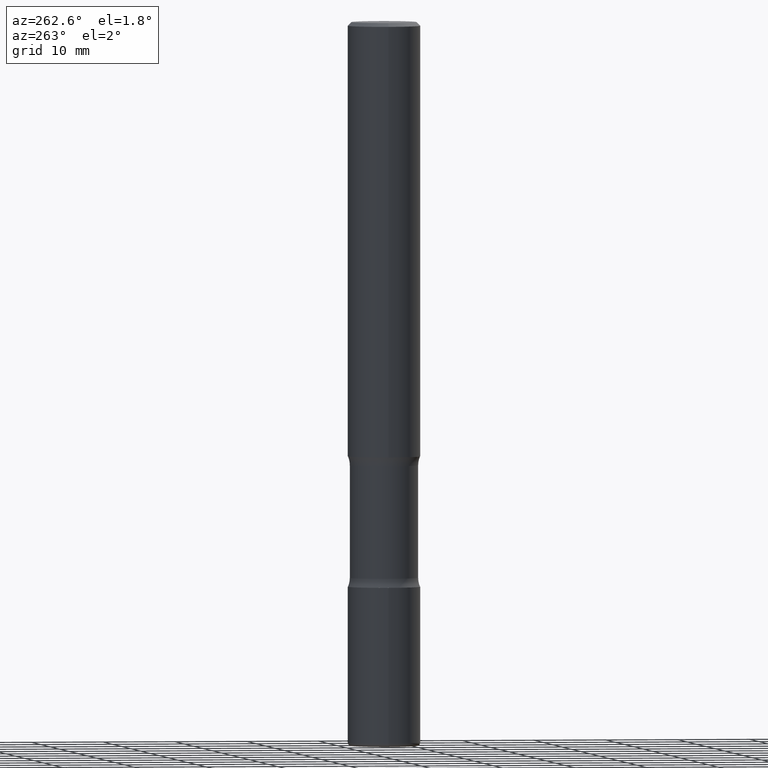
[diagram: clean part render]
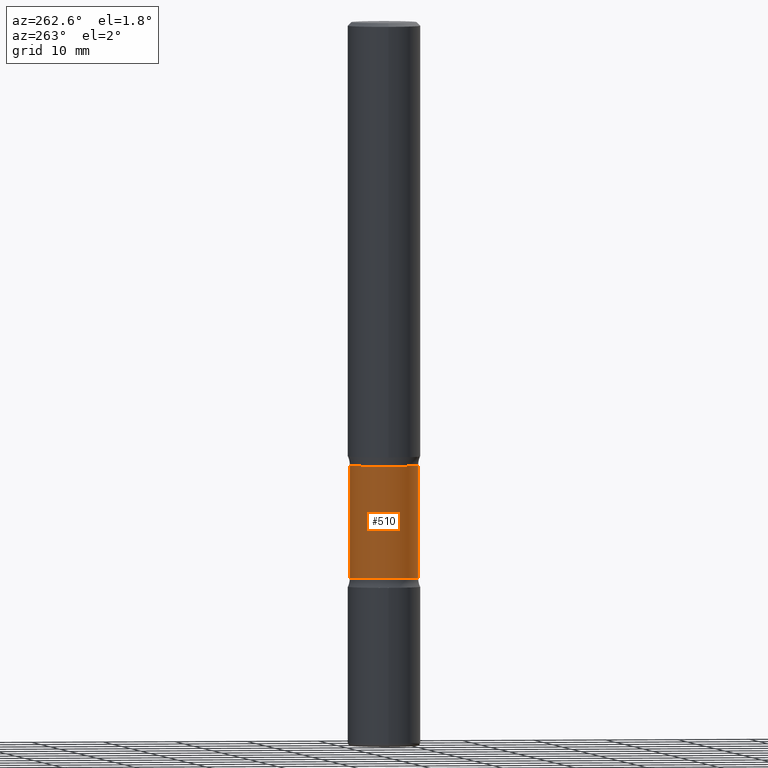
[diagram: same view with one face highlighted and labeled with its STEP entity id]
A machine part, auxiliary view. The second image highlights one B-rep face of the part: STEP entity #510.
In plain terms, the highlighted cylindrical surface (edge-blend (fillet) strip) has radius 4.7498 mm, axis along (0, -0, -1).
Its self-contained STEP definition (entity closure, byte-faithful):
#31 = EDGE_CURVE ( 'NONE', #159, #254, #345, .T. ) ;
#45 = FACE_OUTER_BOUND ( 'NONE', #376, .T. ) ;
#62 = DIRECTION ( 'NONE',  ( 6.982962677686266711E-15, 1.000000000000000000, -2.921762560068729806E-15 ) ) ;
#124 = CIRCLE ( 'NONE', #139, 0.1870000000000000551 ) ;
#132 = DIRECTION ( 'NONE',  ( 6.982962677686266711E-15, 1.000000000000000000, -2.921762560068729017E-15 ) ) ;
#139 = AXIS2_PLACEMENT_3D ( 'NONE', #368, #502, #62 ) ;
#140 = DIRECTION ( 'NONE',  ( 2.540626945080028130E-29, -3.355209467880745729E-15, -1.000000000000000000 ) ) ;
#149 = CARTESIAN_POINT ( 'NONE',  ( 1.305814020727405957E-15, 0.1869999999999895079, -3.022263825191530806 ) ) ;
#158 = CARTESIAN_POINT ( 'NONE',  ( -1.316701078222244837E-15, -0.1870000000000086315, -2.410836174808469679 ) ) ;
#159 = VERTEX_POINT ( 'NONE', #347 ) ;
#161 = ORIENTED_EDGE ( 'NONE', *, *, #31, .T. ) ;
#165 = AXIS2_PLACEMENT_3D ( 'NONE', #521, #529, #132 ) ;
#177 = DIRECTION ( 'NONE',  ( 2.540626945080028130E-29, -3.355209467880746123E-15, -1.000000000000000000 ) ) ;
#188 = ORIENTED_EDGE ( 'NONE', *, *, #300, .F. ) ;
#200 = DIRECTION ( 'NONE',  ( 2.540626945080028130E-29, -3.355209467880745729E-15, -1.000000000000000000 ) ) ;
#201 = VERTEX_POINT ( 'NONE', #441 ) ;
#218 = CIRCLE ( 'NONE', #165, 0.1870000000000001106 ) ;
#254 = VERTEX_POINT ( 'NONE', #149 ) ;
#265 = CYLINDRICAL_SURFACE ( 'NONE', #343, 0.1870000000000000828 ) ;
#300 = EDGE_CURVE ( 'NONE', #201, #254, #124, .T. ) ;
#343 = AXIS2_PLACEMENT_3D ( 'NONE', #560, #177, #445 ) ;
#345 = LINE ( 'NONE', #348, #356 ) ;
#347 = CARTESIAN_POINT ( 'NONE',  ( 1.305814020727390771E-15, 0.1869999999999916174, -2.410836174808470567 ) ) ;
#348 = CARTESIAN_POINT ( 'NONE',  ( 1.305814020727429425E-15, 0.1869999999999864548, -3.937000000000000721 ) ) ;
#356 = VECTOR ( 'NONE', #140, 39.37007874015748143 ) ;
#368 = CARTESIAN_POINT ( 'NONE',  ( 7.386223780689915972E-29, -1.055880548925453445E-14, -3.022263825191530362 ) ) ;
#376 = EDGE_LOOP ( 'NONE', ( #449, #427, #161, #188 ) ) ;
#427 = ORIENTED_EDGE ( 'NONE', *, *, #559, .T. ) ;
#440 = VECTOR ( 'NONE', #200, 39.37007874015748143 ) ;
#441 = CARTESIAN_POINT ( 'NONE',  ( -1.316701078222226890E-15, -0.1870000000000106022, -3.022263825191529918 ) ) ;
#445 = DIRECTION ( 'NONE',  ( 6.982962677686266711E-15, 1.000000000000000000, -2.921762560068729411E-15 ) ) ;
#449 = ORIENTED_EDGE ( 'NONE', *, *, #469, .F. ) ;
#467 = LINE ( 'NONE', #475, #440 ) ;
#469 = EDGE_CURVE ( 'NONE', #474, #201, #467, .T. ) ;
#474 = VERTEX_POINT ( 'NONE', #158 ) ;
#475 = CARTESIAN_POINT ( 'NONE',  ( -1.282913125583179628E-15, -0.1870000000000137108, -3.936999999999999389 ) ) ;
#502 = DIRECTION ( 'NONE',  ( 2.540626945080028130E-29, -3.355209467880746123E-15, -1.000000000000000000 ) ) ;
#510 = ADVANCED_FACE ( 'NONE', ( #45 ), #265, .T. ) ;
#521 = CARTESIAN_POINT ( 'NONE',  ( 5.832814217159742143E-29, -8.507337647765213396E-15, -2.410836174808470123 ) ) ;
#529 = DIRECTION ( 'NONE',  ( 2.540626945080028130E-29, -3.355209467880746123E-15, -1.000000000000000000 ) ) ;
#559 = EDGE_CURVE ( 'NONE', #474, #159, #218, .T. ) ;
#560 = CARTESIAN_POINT ( 'NONE',  ( 9.710227154047748282E-29, -1.362793696358492956E-14, -3.937000000000000277 ) ) ;